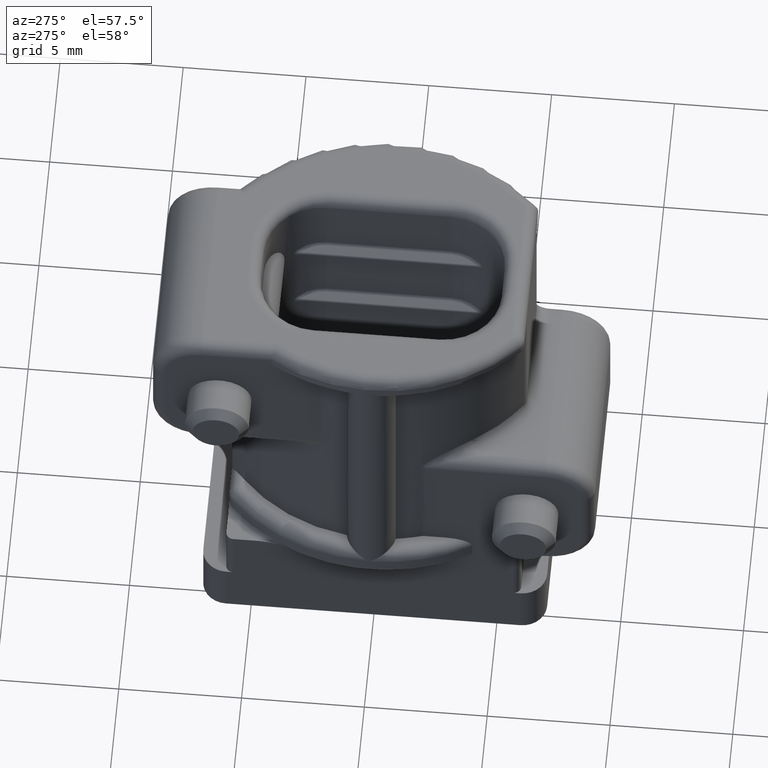
[diagram: clean part render]
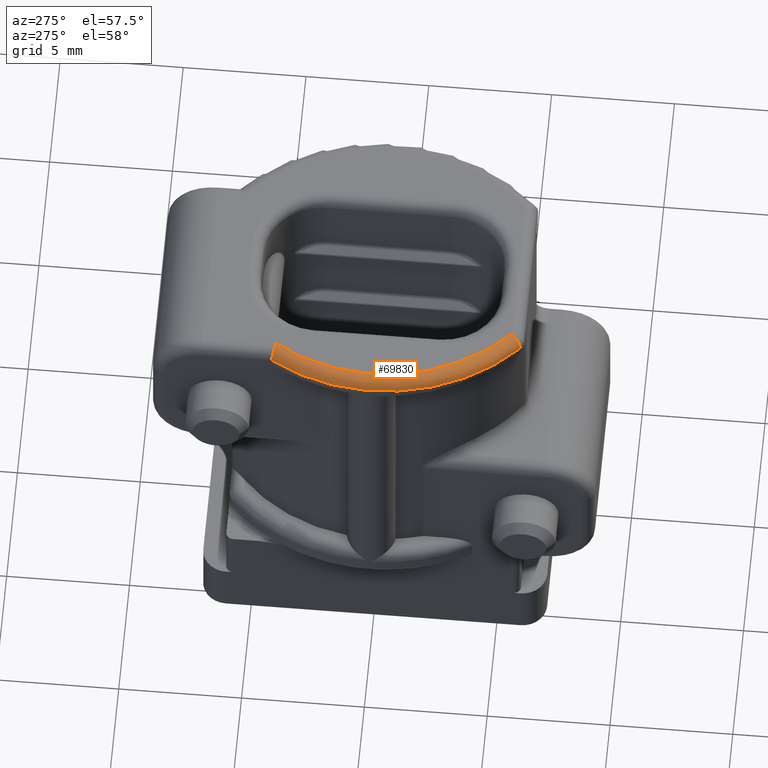
[diagram: same view with one face highlighted and labeled with its STEP entity id]
A machine part, auxiliary view. The second image highlights one B-rep face of the part: STEP entity #69830.
In plain terms, the highlighted toroidal blend (fillet) surface has major radius 7.6 mm and minor (blend) radius 0.5 mm.
Its self-contained STEP definition (entity closure, byte-faithful):
#7790=CARTESIAN_POINT('',(0.,-46.7911187952982,-4.5177489973605));
#7800=DIRECTION('',(1.,0.,0.));
#7810=DIRECTION('',(0.,-1.,0.));
#7820=AXIS2_PLACEMENT_3D('',#7790,#7800,#7810);
#7830=CYLINDRICAL_SURFACE('',#7820,0.5);
#7880=CARTESIAN_POINT('',(29.2126780835721,-46.7911187952982,
-5.0177489973605));
#7890=VERTEX_POINT('',#7880);
#7940=CARTESIAN_POINT('',(25.2744043500691,-40.2911187952982,
-4.5177489973605));
#7950=DIRECTION('',(0.,0.,-1.));
#7960=DIRECTION('',(-1.,0.,0.));
#7970=AXIS2_PLACEMENT_3D('',#7940,#7950,#7960);
#7980=TOROIDAL_SURFACE('',#7970,7.6,0.5);
#7990=CARTESIAN_POINT('',(29.2126780835721,-46.7911187952982,
-5.0177489973605));
#8000=CARTESIAN_POINT('',(29.2171380416019,-46.8070865548986,
-5.0177489973605));
#8010=CARTESIAN_POINT('',(29.221610856971,-46.8231275838455,
-5.01698271079878));
#8020=CARTESIAN_POINT('',(29.2260688077233,-46.8391424252471,
-5.01543738477429));
#8030=CARTESIAN_POINT('',(29.2305266853014,-46.855157003776,
-5.01389208411526));
#8040=CARTESIAN_POINT('',(29.2349689713768,-46.8711427861376,
-5.0115678139103));
#8050=CARTESIAN_POINT('',(29.2393666648014,-46.8869943213197,
-5.00847079584728));
#8060=CARTESIAN_POINT('',(29.2437643534137,-46.9028458391557,
-5.00537378117328));
#8070=CARTESIAN_POINT('',(29.248116753142,-46.9185605908478,
-5.00150449602075));
#8080=CARTESIAN_POINT('',(29.2523960202149,-46.9340359442754,
-4.99688852665048));
#8090=CARTESIAN_POINT('',(29.2566753385533,-46.9495114830973,
-4.99227250198102));
#8100=CARTESIAN_POINT('',(29.2608808730474,-46.9647452495798,
-4.9869106521192));
#8110=CARTESIAN_POINT('',(29.2649880421356,-46.9796452513835,
-4.98084485715189));
#8120=CARTESIAN_POINT('',(29.2690906447792,-46.994528687024,
-4.97478580627431));
#8130=CARTESIAN_POINT('',(29.2731157956227,-47.0091541474159,
-4.96799503041846));
#8140=CARTESIAN_POINT('',(29.2770464625793,-47.0234569229531,
-4.96048932129523));
#8150=CARTESIAN_POINT('',(29.2809763380292,-47.0377568183827,
-4.95298512357439));
#8160=CARTESIAN_POINT('',(29.2848074958875,-47.0517186349569,
-4.94477290629055));
#8170=CARTESIAN_POINT('',(29.2885148859922,-47.0652476110297,
-4.93590374429713));
#8180=CARTESIAN_POINT('',(29.2922195264433,-47.0787665530902,
-4.92704116027974));
#8190=CARTESIAN_POINT('',(29.2958100731065,-47.0918878871371,
-4.9175018373887));
#8200=CARTESIAN_POINT('',(29.2992723314705,-47.104556189712,
-4.90730900529648));
#8210=CARTESIAN_POINT('',(29.3027336961787,-47.1172212224265,
-4.89711880411225));
#8220=CARTESIAN_POINT('',(29.3060620137281,-47.1294158192442,
-4.88628737293901));
#8230=CARTESIAN_POINT('',(29.3092344354734,-47.1410523489726,
-4.87488553709398));
#8240=CARTESIAN_POINT('',(29.3124033732809,-47.1526760995224,
-4.86349622268797));
#8250=CARTESIAN_POINT('',(29.3154283589141,-47.1637855158197,
-4.85150032448506));
#8260=CARTESIAN_POINT('',(29.3183014956694,-47.1743479426594,
-4.83889603628938));
#8270=CARTESIAN_POINT('',(29.3211733014219,-47.1849054763731,
-4.82629758712784));
#8280=CARTESIAN_POINT('',(29.3238865224928,-47.1948912749411,
-4.81311623155995));
#8290=CARTESIAN_POINT('',(29.3264182340498,-47.2042172116495,
-4.79943978245651));
#8300=CARTESIAN_POINT('',(29.3289499371826,-47.213543117326,
-4.78576337886151));
#8310=CARTESIAN_POINT('',(29.3312995418745,-47.2222069656646,
-4.7715950062154));
#8320=CARTESIAN_POINT('',(29.3334495389809,-47.2301405433111,
-4.7570394166666));
#8330=CARTESIAN_POINT('',(29.3355995683703,-47.2380742400828,
-4.74248360856101));
#8340=CARTESIAN_POINT('',(29.3375495520585,-47.2452760260288,
-4.72754401480054));
#8350=CARTESIAN_POINT('',(29.3392887595321,-47.2517030054327,
-4.71233107612111));
#8360=CARTESIAN_POINT('',(29.3410251426644,-47.2581195479083,
-4.69714284210316));
#8370=CARTESIAN_POINT('',(29.342564136586,-47.2638107392111,
-4.68157637634638));
#8380=CARTESIAN_POINT('',(29.3438953108065,-47.2687354678088,
-4.66567571617736));
#8390=CARTESIAN_POINT('',(29.3452260445196,-47.2736585667332,
-4.6497803177969));
#8400=CARTESIAN_POINT('',(29.3463463048726,-47.2778053755022,
-4.63357574663785));
#8410=CARTESIAN_POINT('',(29.3472445479573,-47.2811311941776,
-4.61718666097184));
#8420=CARTESIAN_POINT('',(29.3481427896246,-47.2844570076046,
-4.60079760116873));
#8430=CARTESIAN_POINT('',(29.3488187702904,-47.2869609160148,
-4.58422839515233));
#8440=CARTESIAN_POINT('',(29.3492683600348,-47.2886263860774,
-4.56761077748398));
#8450=CARTESIAN_POINT('',(29.3497179584815,-47.2902918883768,
-4.550992838165));
#8460=CARTESIAN_POINT('',(29.349941124532,-47.2911187952982,
-4.53433082235605));
#8470=CARTESIAN_POINT('',(29.349941124532,-47.2911187952982,
-4.5177489973605));
#8480=B_SPLINE_CURVE_WITH_KNOTS('',3,(#7990,#8000,#8010,#8020,#8030,
#8040,#8050,#8060,#8070,#8080,#8090,#8100,#8110,#8120,#8130,#8140,#8150,
#8160,#8170,#8180,#8190,#8200,#8210,#8220,#8230,#8240,#8250,#8260,#8270,
#8280,#8290,#8300,#8310,#8320,#8330,#8340,#8350,#8360,#8370,#8380,#8390,
#8400,#8410,#8420,#8430,#8440,#8450,#8460,#8470),.UNSPECIFIED.,.F.,.F.,(
4,3,3,3,3,3,3,3,3,3,3,3,3,3,3,3,4),(0.,0.0499270316773505,
0.100096738765216,0.150283148667999,0.200263226836795,0.25007346702869,
0.299916409222193,0.349720616346664,0.399564908317788,0.449445351619111,
0.499614532317427,0.549828021526298,0.59982820650535,0.649730207585233,
0.699912848108712,0.750115453300485,0.800066287088177),.UNSPECIFIED.);
#8490=SURFACE_CURVE('',#8480,(#7830,#7980),.CURVE_3D.);
#8500=CARTESIAN_POINT('',(29.349941124532,-47.2911187952982,
-4.5177489973605));
#8510=VERTEX_POINT('',#8500);
#8520=EDGE_CURVE('',#7890,#8510,#8490,.T.);
#38370=CARTESIAN_POINT('',(25.2744043500691,-40.2911187952982,
-4.5177489973605));
#38380=DIRECTION('',(0.,0.,-1.));
#38390=DIRECTION('',(-1.,0.,0.));
#38400=AXIS2_PLACEMENT_3D('',#38370,#38380,#38390);
#38410=CIRCLE('',#38400,8.1);
#38420=CARTESIAN_POINT('',(19.3592727711217,-45.8247630198341,
-4.5177489973605));
#38430=VERTEX_POINT('',#38420);
#38440=EDGE_CURVE('',#8510,#38430,#38410,.T.);
#67980=CARTESIAN_POINT('',(19.7244043500691,-45.4831800430109,
-4.5177489973605));
#67990=DIRECTION('',(0.683165953646408,-0.730263157894737,0.));
#68000=DIRECTION('',(-0.730263157894737,-0.683165953646408,0.));
#68010=AXIS2_PLACEMENT_3D('',#67980,#67990,#68000);
#68020=CIRCLE('',#68010,0.5);
#68030=CARTESIAN_POINT('',(19.7244043500691,-45.4831800430109,
-5.0177489973605));
#68040=VERTEX_POINT('',#68030);
#68050=EDGE_CURVE('',#38430,#68040,#68020,.T.);
#69710=ORIENTED_EDGE('',*,*,#68050,.T.);
#69720=ORIENTED_EDGE('',*,*,#38440,.T.);
#69730=ORIENTED_EDGE('',*,*,#8520,.T.);
#69740=CARTESIAN_POINT('',(25.2744043500691,-40.2911187952982,
-5.0177489973605));
#69750=DIRECTION('',(0.,0.,-1.));
#69760=DIRECTION('',(-1.,0.,0.));
#69770=AXIS2_PLACEMENT_3D('',#69740,#69750,#69760);
#69780=CIRCLE('',#69770,7.6);
#69790=EDGE_CURVE('',#7890,#68040,#69780,.T.);
#69800=ORIENTED_EDGE('',*,*,#69790,.F.);
#69810=EDGE_LOOP('',(#69800,#69730,#69720,#69710));
#69820=FACE_OUTER_BOUND('',#69810,.T.);
#69830=ADVANCED_FACE('',(#69820),#7980,.T.);